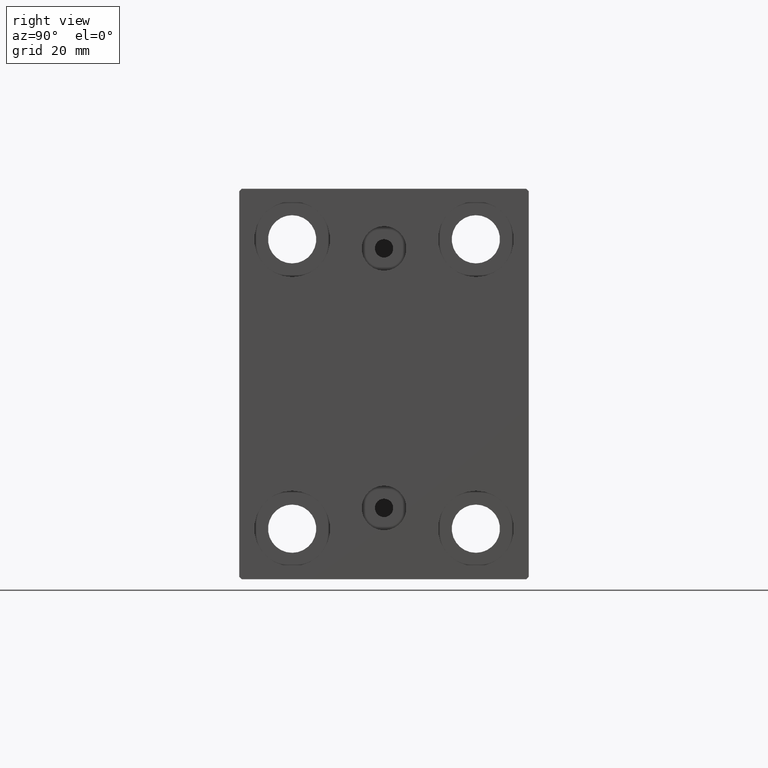
[diagram: clean part render]
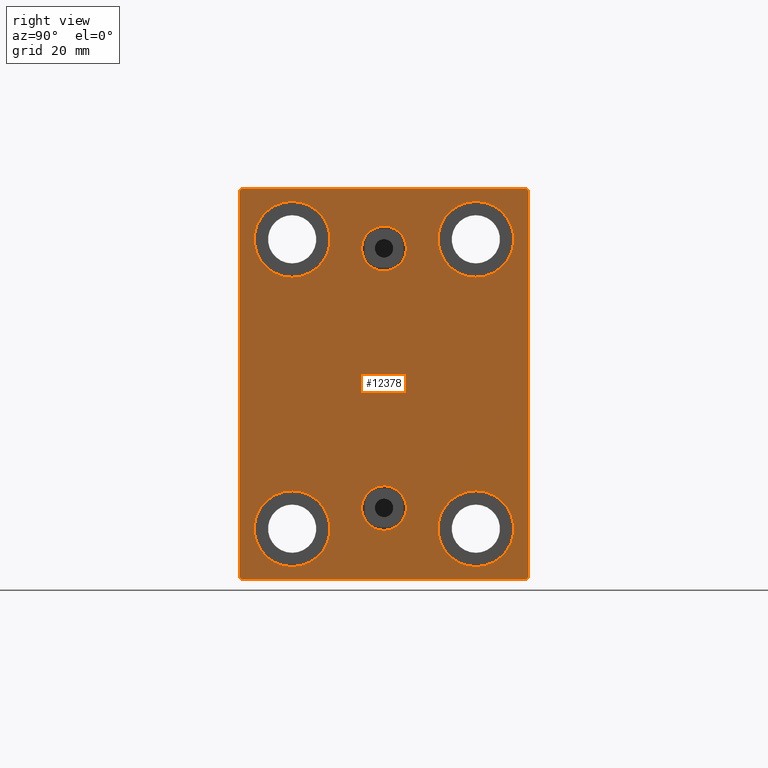
[diagram: same view with one face highlighted and labeled with its STEP entity id]
A machine part, right view. The second image highlights one B-rep face of the part: STEP entity #12378.
In plain terms, the highlighted planar face has unit normal (1, 0, 0).
Its self-contained STEP definition (entity closure, byte-faithful):
#484 = VERTEX_POINT ( 'NONE', #2228 ) ;
#992 = CIRCLE ( 'NONE', #23729, 4.859999999999995879 ) ;
#1531 = FACE_BOUND ( 'NONE', #13017, .T. ) ;
#1750 = AXIS2_PLACEMENT_3D ( 'NONE', #6197, #2747, #13318 ) ;
#1957 = CIRCLE ( 'NONE', #2663, 8.250000000000000000 ) ;
#2026 = DIRECTION ( 'NONE',  ( 0.000000000000000000, 0.000000000000000000, 1.000000000000000000 ) ) ;
#2228 = CARTESIAN_POINT ( 'NONE',  ( 73.00000000000000000, 19.99999999999999645, -39.74999999999999289 ) ) ;
#2634 = DIRECTION ( 'NONE',  ( -0.000000000000000000, 0.7071067811865474617, -0.7071067811865474617 ) ) ;
#2663 = AXIS2_PLACEMENT_3D ( 'NONE', #28478, #4371, #7371 ) ;
#2714 = DIRECTION ( 'NONE',  ( 0.000000000000000000, 0.000000000000000000, 1.000000000000000000 ) ) ;
#2747 = DIRECTION ( 'NONE',  ( -1.000000000000000000, -0.000000000000000000, -0.000000000000000000 ) ) ;
#3286 = VECTOR ( 'NONE', #37202, 1000.000000000000114 ) ;
#3342 = ORIENTED_EDGE ( 'NONE', *, *, #21747, .T. ) ;
#3517 = AXIS2_PLACEMENT_3D ( 'NONE', #31336, #31567, #41898 ) ;
#3945 = CIRCLE ( 'NONE', #1750, 8.249999999999992895 ) ;
#4069 = DIRECTION ( 'NONE',  ( 0.000000000000000000, 0.000000000000000000, -1.000000000000000000 ) ) ;
#4116 = CARTESIAN_POINT ( 'NONE',  ( 73.00000000000000000, 31.50000000000000000, 42.00000000000000711 ) ) ;
#4296 = ORIENTED_EDGE ( 'NONE', *, *, #43073, .F. ) ;
#4371 = DIRECTION ( 'NONE',  ( -1.000000000000000000, -0.000000000000000000, -0.000000000000000000 ) ) ;
#4754 = FACE_BOUND ( 'NONE', #14493, .T. ) ;
#4955 = DIRECTION ( 'NONE',  ( 0.000000000000000000, 0.000000000000000000, -1.000000000000000000 ) ) ;
#4975 = EDGE_CURVE ( 'NONE', #9193, #41016, #8693, .T. ) ;
#4986 = FACE_BOUND ( 'NONE', #41012, .T. ) ;
#5154 = VECTOR ( 'NONE', #2634, 1000.000000000000114 ) ;
#5729 = ORIENTED_EDGE ( 'NONE', *, *, #13022, .T. ) ;
#6197 = CARTESIAN_POINT ( 'NONE',  ( 73.00000000000000000, -19.99999999999999645, 31.50000000000000000 ) ) ;
#6271 = VERTEX_POINT ( 'NONE', #11745 ) ;
#6786 = EDGE_CURVE ( 'NONE', #15151, #30605, #19471, .T. ) ;
#7059 = AXIS2_PLACEMENT_3D ( 'NONE', #10747, #9832, #2714 ) ;
#7104 = EDGE_CURVE ( 'NONE', #29394, #43988, #29383, .T. ) ;
#7250 = DIRECTION ( 'NONE',  ( -1.000000000000000000, -0.000000000000000000, -0.000000000000000000 ) ) ;
#7371 = DIRECTION ( 'NONE',  ( 0.000000000000000000, 0.000000000000000000, 1.000000000000000000 ) ) ;
#7418 = CARTESIAN_POINT ( 'NONE',  ( 73.00000000000000000, -3.571693674697836683E-15, 24.64000000000001123 ) ) ;
#7517 = FACE_BOUND ( 'NONE', #19182, .T. ) ;
#7693 = CIRCLE ( 'NONE', #17108, 8.249999999999992895 ) ;
#7979 = FACE_BOUND ( 'NONE', #13237, .T. ) ;
#8473 = DIRECTION ( 'NONE',  ( -1.000000000000000000, -0.000000000000000000, -0.000000000000000000 ) ) ;
#8608 = EDGE_LOOP ( 'NONE', ( #9940, #3342, #15633, #12955, #40832, #5729, #29668, #11816 ) ) ;
#8693 = LINE ( 'NONE', #25877, #24188 ) ;
#9153 = DIRECTION ( 'NONE',  ( -0.000000000000000000, -0.7071067811865474617, 0.7071067811865474617 ) ) ;
#9193 = VERTEX_POINT ( 'NONE', #30576 ) ;
#9237 = CARTESIAN_POINT ( 'NONE',  ( 73.00000000000000000, 31.50000000000000000, 42.50000000000000711 ) ) ;
#9689 = EDGE_CURVE ( 'NONE', #43988, #29394, #44884, .T. ) ;
#9832 = DIRECTION ( 'NONE',  ( -1.000000000000000000, -0.000000000000000000, -0.000000000000000000 ) ) ;
#9940 = ORIENTED_EDGE ( 'NONE', *, *, #23209, .T. ) ;
#10192 = CARTESIAN_POINT ( 'NONE',  ( 73.00000000000000000, 31.00000000000001421, -42.50000000000000711 ) ) ;
#10747 = CARTESIAN_POINT ( 'NONE',  ( 73.00000000000000000, 19.99999999999999645, -31.49999999999999289 ) ) ;
#11307 = EDGE_CURVE ( 'NONE', #40616, #30126, #17058, .T. ) ;
#11477 = VERTEX_POINT ( 'NONE', #44040 ) ;
#11558 = AXIS2_PLACEMENT_3D ( 'NONE', #16578, #44592, #30806 ) ;
#11745 = CARTESIAN_POINT ( 'NONE',  ( 73.00000000000000000, 3.306546357697852550E-15, -31.85999999999998522 ) ) ;
#11816 = ORIENTED_EDGE ( 'NONE', *, *, #6786, .T. ) ;
#12186 = CIRCLE ( 'NONE', #18026, 8.250000000000000000 ) ;
#12271 = CARTESIAN_POINT ( 'NONE',  ( 73.00000000000000000, -19.99999999999999645, 39.74999999999999289 ) ) ;
#12378 = ADVANCED_FACE ( 'NONE', ( #4986, #4754, #7517, #21731, #7979, #1531, #21505 ), #35743, .T. ) ;
#12955 = ORIENTED_EDGE ( 'NONE', *, *, #32915, .T. ) ;
#13017 = EDGE_LOOP ( 'NONE', ( #34493, #39547 ) ) ;
#13022 = EDGE_CURVE ( 'NONE', #24566, #16848, #24054, .T. ) ;
#13237 = EDGE_LOOP ( 'NONE', ( #31281, #45275 ) ) ;
#13318 = DIRECTION ( 'NONE',  ( 0.000000000000000000, 0.000000000000000000, 1.000000000000000000 ) ) ;
#13881 = CARTESIAN_POINT ( 'NONE',  ( 73.00000000000000000, 3.306546357697852550E-15, -26.99999999999998934 ) ) ;
#14449 = LINE ( 'NONE', #42675, #32520 ) ;
#14493 = EDGE_LOOP ( 'NONE', ( #17913, #4296 ) ) ;
#14699 = VERTEX_POINT ( 'NONE', #42054 ) ;
#15151 = VERTEX_POINT ( 'NONE', #4116 ) ;
#15437 = EDGE_CURVE ( 'NONE', #14699, #24566, #24384, .T. ) ;
#15633 = ORIENTED_EDGE ( 'NONE', *, *, #4975, .T. ) ;
#15737 = CARTESIAN_POINT ( 'NONE',  ( 73.00000000000000000, -3.571693674697836683E-15, 29.50000000000001066 ) ) ;
#16578 = CARTESIAN_POINT ( 'NONE',  ( 73.00000000000000000, 3.306546357697852550E-15, -26.99999999999998934 ) ) ;
#16848 = VERTEX_POINT ( 'NONE', #33498 ) ;
#17058 = CIRCLE ( 'NONE', #26593, 8.249999999999992895 ) ;
#17108 = AXIS2_PLACEMENT_3D ( 'NONE', #42815, #7250, #31578 ) ;
#17431 = EDGE_CURVE ( 'NONE', #19280, #11477, #7693, .T. ) ;
#17913 = ORIENTED_EDGE ( 'NONE', *, *, #19215, .F. ) ;
#17967 = VECTOR ( 'NONE', #24110, 1000.000000000000000 ) ;
#18026 = AXIS2_PLACEMENT_3D ( 'NONE', #36077, #43198, #39754 ) ;
#18149 = VERTEX_POINT ( 'NONE', #44594 ) ;
#18220 = CARTESIAN_POINT ( 'NONE',  ( 73.00000000000000000, 3.901724702083465828E-15, -22.13999999999999346 ) ) ;
#18575 = EDGE_CURVE ( 'NONE', #30126, #40616, #3945, .T. ) ;
#18630 = EDGE_CURVE ( 'NONE', #16848, #15151, #14449, .T. ) ;
#18983 = CARTESIAN_POINT ( 'NONE',  ( 73.00000000000000000, 0.000000000000000000, 0.000000000000000000 ) ) ;
#19182 = EDGE_LOOP ( 'NONE', ( #45250, #33350 ) ) ;
#19215 = EDGE_CURVE ( 'NONE', #6271, #33063, #992, .T. ) ;
#19280 = VERTEX_POINT ( 'NONE', #28557 ) ;
#19471 = LINE ( 'NONE', #44489, #22795 ) ;
#20523 = CARTESIAN_POINT ( 'NONE',  ( 73.00000000000000000, 19.99999999999999645, -23.24999999999999289 ) ) ;
#20582 = CARTESIAN_POINT ( 'NONE',  ( 73.00000000000000000, -20.00000000000000355, -39.74999999999999289 ) ) ;
#21505 = FACE_OUTER_BOUND ( 'NONE', #8608, .T. ) ;
#21608 = VERTEX_POINT ( 'NONE', #20523 ) ;
#21731 = FACE_BOUND ( 'NONE', #22596, .T. ) ;
#21747 = EDGE_CURVE ( 'NONE', #18149, #9193, #37638, .T. ) ;
#22596 = EDGE_LOOP ( 'NONE', ( #36367, #23482 ) ) ;
#22795 = VECTOR ( 'NONE', #9153, 1000.000000000000114 ) ;
#22864 = CARTESIAN_POINT ( 'NONE',  ( 73.00000000000000000, 31.00000000000000000, 42.50000000000000711 ) ) ;
#23209 = EDGE_CURVE ( 'NONE', #30605, #18149, #23438, .T. ) ;
#23438 = LINE ( 'NONE', #9237, #17967 ) ;
#23482 = ORIENTED_EDGE ( 'NONE', *, *, #18575, .T. ) ;
#23729 = AXIS2_PLACEMENT_3D ( 'NONE', #13881, #24195, #38200 ) ;
#23978 = VERTEX_POINT ( 'NONE', #41185 ) ;
#23980 = CIRCLE ( 'NONE', #11558, 4.859999999999995879 ) ;
#24054 = LINE ( 'NONE', #42199, #39812 ) ;
#24110 = DIRECTION ( 'NONE',  ( 0.000000000000000000, -1.000000000000000000, -2.202823461557850341E-16 ) ) ;
#24188 = VECTOR ( 'NONE', #39664, 1000.000000000000000 ) ;
#24195 = DIRECTION ( 'NONE',  ( 1.000000000000000000, 0.000000000000000000, -0.000000000000000000 ) ) ;
#24384 = LINE ( 'NONE', #42067, #34002 ) ;
#24566 = VERTEX_POINT ( 'NONE', #10192 ) ;
#25185 = EDGE_CURVE ( 'NONE', #484, #21608, #36360, .T. ) ;
#25309 = CARTESIAN_POINT ( 'NONE',  ( 73.00000000000000000, -31.50000000000000000, -42.00000000000000711 ) ) ;
#25439 = CARTESIAN_POINT ( 'NONE',  ( 73.00000000000000000, -2.976515330312223011E-15, 34.36000000000000654 ) ) ;
#25877 = CARTESIAN_POINT ( 'NONE',  ( 73.00000000000000000, -31.50000000000000000, 42.49999999999999289 ) ) ;
#26559 = AXIS2_PLACEMENT_3D ( 'NONE', #15737, #33635, #4955 ) ;
#26593 = AXIS2_PLACEMENT_3D ( 'NONE', #39912, #8473, #2026 ) ;
#26621 = AXIS2_PLACEMENT_3D ( 'NONE', #18983, #35513, #4069 ) ;
#26662 = EDGE_CURVE ( 'NONE', #23978, #27279, #1957, .T. ) ;
#27190 = LINE ( 'NONE', #40754, #5154 ) ;
#27279 = VERTEX_POINT ( 'NONE', #20582 ) ;
#27363 = DIRECTION ( 'NONE',  ( -1.000000000000000000, -0.000000000000000000, -0.000000000000000000 ) ) ;
#27368 = DIRECTION ( 'NONE',  ( 1.000000000000000000, 0.000000000000000000, 0.000000000000000000 ) ) ;
#28178 = DIRECTION ( 'NONE',  ( -0.000000000000000000, 0.7071067811865474617, 0.7071067811865474617 ) ) ;
#28205 = DIRECTION ( 'NONE',  ( 0.000000000000000000, -1.632680918566406300E-16, 1.000000000000000000 ) ) ;
#28478 = CARTESIAN_POINT ( 'NONE',  ( 73.00000000000000000, -20.00000000000000355, -31.49999999999999289 ) ) ;
#28557 = CARTESIAN_POINT ( 'NONE',  ( 73.00000000000000000, 20.00000000000000355, 39.74999999999999289 ) ) ;
#29383 = CIRCLE ( 'NONE', #41123, 4.859999999999999432 ) ;
#29394 = VERTEX_POINT ( 'NONE', #7418 ) ;
#29668 = ORIENTED_EDGE ( 'NONE', *, *, #18630, .T. ) ;
#30126 = VERTEX_POINT ( 'NONE', #12271 ) ;
#30517 = AXIS2_PLACEMENT_3D ( 'NONE', #38150, #27363, #31038 ) ;
#30576 = CARTESIAN_POINT ( 'NONE',  ( 73.00000000000000000, -31.50000000000000000, 41.99999999999999289 ) ) ;
#30599 = DIRECTION ( 'NONE',  ( 0.000000000000000000, 0.000000000000000000, -1.000000000000000000 ) ) ;
#30605 = VERTEX_POINT ( 'NONE', #22864 ) ;
#30678 = EDGE_CURVE ( 'NONE', #27279, #23978, #39436, .T. ) ;
#30806 = DIRECTION ( 'NONE',  ( 0.000000000000000000, 0.000000000000000000, 1.000000000000000000 ) ) ;
#31038 = DIRECTION ( 'NONE',  ( 0.000000000000000000, 0.000000000000000000, 1.000000000000000000 ) ) ;
#31281 = ORIENTED_EDGE ( 'NONE', *, *, #40174, .T. ) ;
#31336 = CARTESIAN_POINT ( 'NONE',  ( 73.00000000000000000, -20.00000000000000355, -31.49999999999999289 ) ) ;
#31567 = DIRECTION ( 'NONE',  ( -1.000000000000000000, -0.000000000000000000, -0.000000000000000000 ) ) ;
#31578 = DIRECTION ( 'NONE',  ( 0.000000000000000000, 0.000000000000000000, 1.000000000000000000 ) ) ;
#32520 = VECTOR ( 'NONE', #28205, 1000.000000000000000 ) ;
#32915 = EDGE_CURVE ( 'NONE', #41016, #14699, #27190, .T. ) ;
#33063 = VERTEX_POINT ( 'NONE', #18220 ) ;
#33350 = ORIENTED_EDGE ( 'NONE', *, *, #35761, .T. ) ;
#33498 = CARTESIAN_POINT ( 'NONE',  ( 73.00000000000000000, 31.50000000000001421, -42.00000000000000711 ) ) ;
#33635 = DIRECTION ( 'NONE',  ( 1.000000000000000000, 0.000000000000000000, 0.000000000000000000 ) ) ;
#34002 = VECTOR ( 'NONE', #34266, 1000.000000000000000 ) ;
#34038 = CARTESIAN_POINT ( 'NONE',  ( 73.00000000000000000, -3.571693674697836683E-15, 29.50000000000001066 ) ) ;
#34266 = DIRECTION ( 'NONE',  ( 0.000000000000000000, 1.000000000000000000, 0.000000000000000000 ) ) ;
#34493 = ORIENTED_EDGE ( 'NONE', *, *, #30678, .T. ) ;
#35513 = DIRECTION ( 'NONE',  ( 1.000000000000000000, 0.000000000000000000, 0.000000000000000000 ) ) ;
#35743 = PLANE ( 'NONE',  #26621 ) ;
#35761 = EDGE_CURVE ( 'NONE', #21608, #484, #12186, .T. ) ;
#36077 = CARTESIAN_POINT ( 'NONE',  ( 73.00000000000000000, 19.99999999999999645, -31.49999999999999289 ) ) ;
#36360 = CIRCLE ( 'NONE', #7059, 8.250000000000000000 ) ;
#36367 = ORIENTED_EDGE ( 'NONE', *, *, #11307, .T. ) ;
#36390 = CIRCLE ( 'NONE', #30517, 8.249999999999992895 ) ;
#36728 = ORIENTED_EDGE ( 'NONE', *, *, #7104, .F. ) ;
#37202 = DIRECTION ( 'NONE',  ( 0.000000000000000000, -0.7071067811865474617, -0.7071067811865474617 ) ) ;
#37638 = LINE ( 'NONE', #40418, #3286 ) ;
#38150 = CARTESIAN_POINT ( 'NONE',  ( 73.00000000000000000, 20.00000000000000355, 31.50000000000000000 ) ) ;
#38200 = DIRECTION ( 'NONE',  ( 0.000000000000000000, 0.000000000000000000, 1.000000000000000000 ) ) ;
#38208 = CARTESIAN_POINT ( 'NONE',  ( 73.00000000000000000, -19.99999999999999645, 23.25000000000000355 ) ) ;
#39436 = CIRCLE ( 'NONE', #3517, 8.250000000000000000 ) ;
#39547 = ORIENTED_EDGE ( 'NONE', *, *, #26662, .T. ) ;
#39664 = DIRECTION ( 'NONE',  ( 0.000000000000000000, 0.000000000000000000, -1.000000000000000000 ) ) ;
#39754 = DIRECTION ( 'NONE',  ( 0.000000000000000000, 0.000000000000000000, 1.000000000000000000 ) ) ;
#39812 = VECTOR ( 'NONE', #28178, 1000.000000000000114 ) ;
#39912 = CARTESIAN_POINT ( 'NONE',  ( 73.00000000000000000, -19.99999999999999645, 31.50000000000000000 ) ) ;
#40174 = EDGE_CURVE ( 'NONE', #11477, #19280, #36390, .T. ) ;
#40418 = CARTESIAN_POINT ( 'NONE',  ( 73.00000000000000000, -36.75000000000000000, 36.75000000000000000 ) ) ;
#40616 = VERTEX_POINT ( 'NONE', #38208 ) ;
#40754 = CARTESIAN_POINT ( 'NONE',  ( 73.00000000000000000, -36.75000000000000711, -36.75000000000000711 ) ) ;
#40832 = ORIENTED_EDGE ( 'NONE', *, *, #15437, .T. ) ;
#41012 = EDGE_LOOP ( 'NONE', ( #36728, #45179 ) ) ;
#41016 = VERTEX_POINT ( 'NONE', #25309 ) ;
#41123 = AXIS2_PLACEMENT_3D ( 'NONE', #34038, #27368, #30599 ) ;
#41185 = CARTESIAN_POINT ( 'NONE',  ( 73.00000000000000000, -20.00000000000000355, -23.24999999999999289 ) ) ;
#41898 = DIRECTION ( 'NONE',  ( 0.000000000000000000, 0.000000000000000000, 1.000000000000000000 ) ) ;
#42054 = CARTESIAN_POINT ( 'NONE',  ( 73.00000000000000000, -31.00000000000000000, -42.50000000000000711 ) ) ;
#42067 = CARTESIAN_POINT ( 'NONE',  ( 73.00000000000000000, -31.50000000000000000, -42.50000000000000711 ) ) ;
#42199 = CARTESIAN_POINT ( 'NONE',  ( 73.00000000000000000, 36.75000000000001421, -36.75000000000001421 ) ) ;
#42675 = CARTESIAN_POINT ( 'NONE',  ( 73.00000000000000000, 31.50000000000001421, -42.50000000000000711 ) ) ;
#42815 = CARTESIAN_POINT ( 'NONE',  ( 73.00000000000000000, 20.00000000000000355, 31.50000000000000000 ) ) ;
#43073 = EDGE_CURVE ( 'NONE', #33063, #6271, #23980, .T. ) ;
#43198 = DIRECTION ( 'NONE',  ( -1.000000000000000000, -0.000000000000000000, -0.000000000000000000 ) ) ;
#43988 = VERTEX_POINT ( 'NONE', #25439 ) ;
#44040 = CARTESIAN_POINT ( 'NONE',  ( 73.00000000000000000, 20.00000000000000355, 23.25000000000000355 ) ) ;
#44489 = CARTESIAN_POINT ( 'NONE',  ( 73.00000000000000000, 36.75000000000000711, 36.75000000000000711 ) ) ;
#44592 = DIRECTION ( 'NONE',  ( 1.000000000000000000, 0.000000000000000000, -0.000000000000000000 ) ) ;
#44594 = CARTESIAN_POINT ( 'NONE',  ( 73.00000000000000000, -31.00000000000000000, 42.49999999999999289 ) ) ;
#44884 = CIRCLE ( 'NONE', #26559, 4.859999999999999432 ) ;
#45179 = ORIENTED_EDGE ( 'NONE', *, *, #9689, .F. ) ;
#45250 = ORIENTED_EDGE ( 'NONE', *, *, #25185, .T. ) ;
#45275 = ORIENTED_EDGE ( 'NONE', *, *, #17431, .T. ) ;